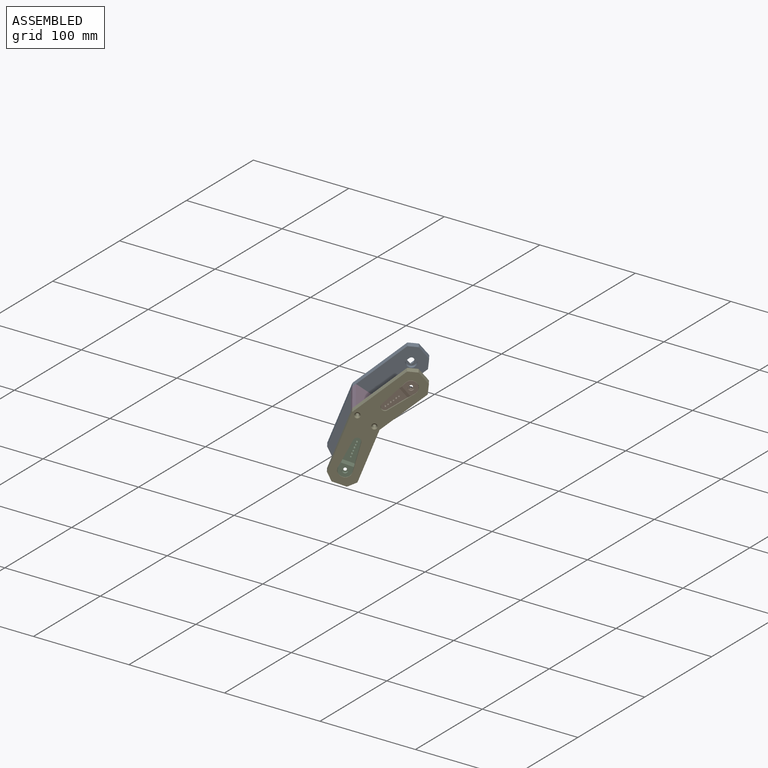
[diagram: assembled view]
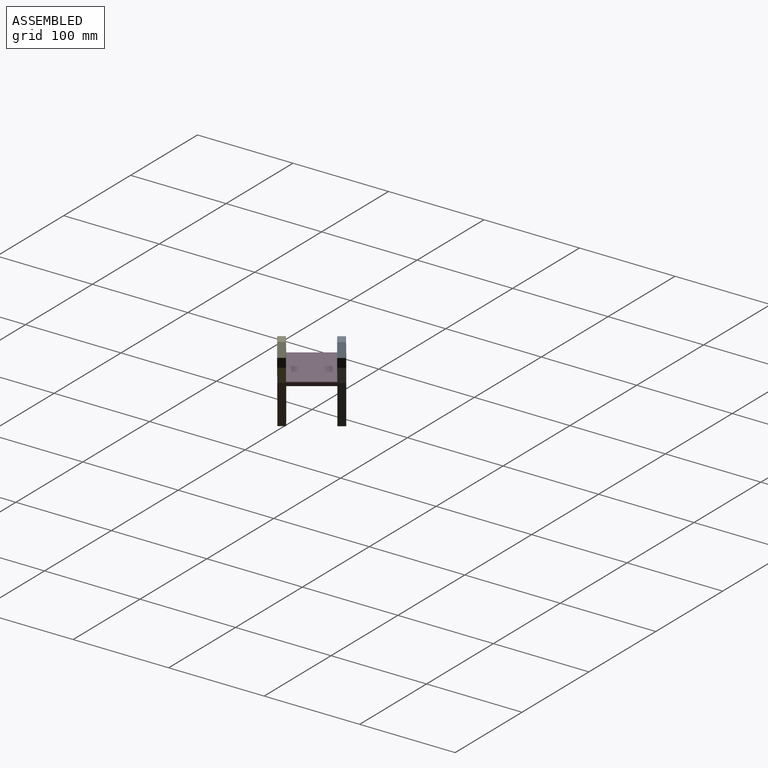
[diagram: assembled view, second angle]
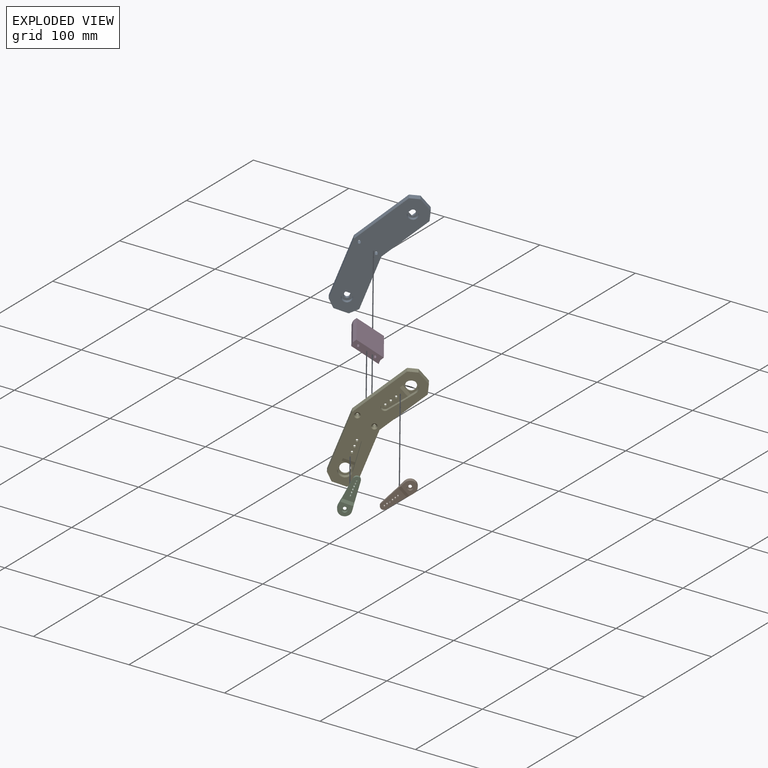
[diagram: exploded view]
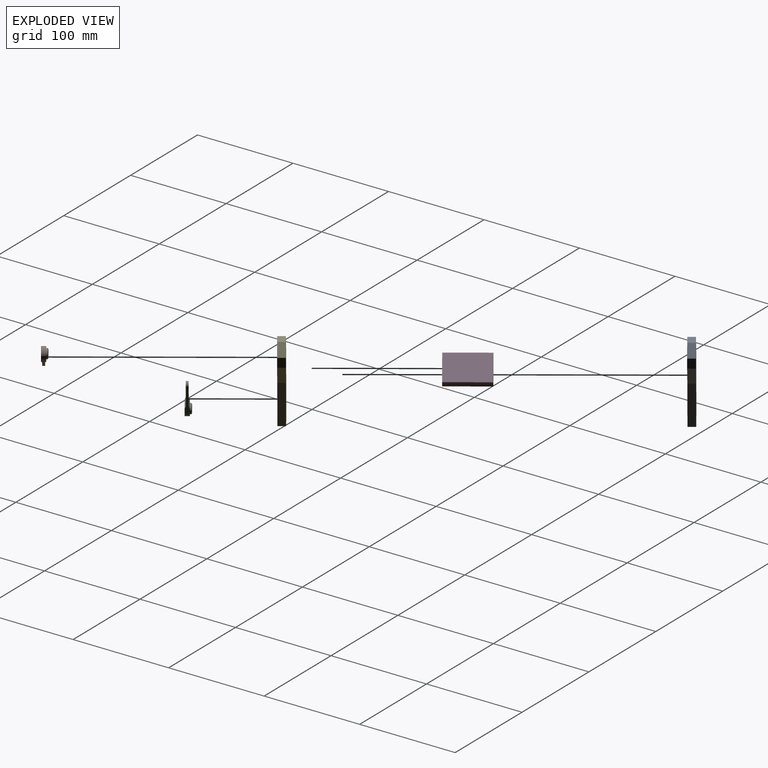
[diagram: exploded view, second angle]
ASSEMBLY  parts=5 mates=7
PART A: 37 faces, bbox 54.6x7.5x122.9 mm
  f0: plane 122.93x54.62mm, normal (0,-1,0), area 2860.3mm2, adj f3,f4,f5,f6,f7,f8,f9,f10
  f1: plane 4.76x2.75mm, normal (-0.5,0,0.87), area 2.9mm2, adj f6,f7,f25,f28,f33,f34
  f2: plane 5.5x1mm, normal (0,0,-1), area 2.9mm2, adj f3,f5,f23,f28,f31,f36
  f3: plane 46.72x3.5mm, normal (-1,0,0), area 119.5mm2, adj f0,f2,f4,f23,f30,f36
  f4: cylinder r=2.75mm len=5.5mm, axis (0,1,0), area 30.2mm2, adj f0,f3,f5,f23
  f5: plane 45.24x3.5mm, normal (1,0,0), area 115.9mm2, adj f0,f2,f4,f23,f29,f31
  f6: plane 40.46x23.36mm, normal (-0.87,0,-0.5), area 119.5mm2, adj f0,f1,f8,f25,f30,f34
  f7: plane 39.18x22.62mm, normal (0.87,0,0.5), area 115.9mm2, adj f0,f1,f8,f25,f29,f33
  f8: cylinder r=2.75mm len=5.13mm, axis (0,1,0), area 30.2mm2, adj f0,f6,f7,f25
  f9: plane 7.5x7mm, normal (-0.71,0,-0.71), area 74.2mm2, adj f0,f10,f20,f21
  f10: plane 14x7.5mm, normal (0,0,-1), area 105mm2, adj f0,f9,f11,f21
  f11: plane 7.5x7mm, normal (0.71,0,-0.71), area 74.2mm2, adj f0,f10,f12,f21
  f12: plane 60.75x7.5mm, normal (1,0,0), area 455.6mm2, adj f0,f11,f13,f21
  f13: plane 52.61x30.38mm, normal (0.87,0,0.5), area 455.6mm2, adj f0,f12,f14,f21
  f14: plane 9.56x7.5mm, normal (0.26,0,0.97), area 74.2mm2, adj f0,f13,f15,f21
  f15: plane 12.12x7.5mm, normal (-0.5,0,0.87), area 105mm2, adj f0,f14,f16,f21
  f16: plane 9.56x7.5mm, normal (-0.97,0,0.26), area 74.2mm2, adj f0,f15,f17,f21
  f17: plane 46.11x26.62mm, normal (-0.87,0,-0.5), area 399.4mm2, adj f0,f16,f20,f21
  f18: cylinder r=1.62mm len=6.25mm, axis (0,1,0), area 63.8mm2, adj f21,f26
  f19: cylinder r=1.62mm len=6.25mm, axis (0,1,0), area 63.8mm2, adj f21,f27
  f20: plane 53.25x7.5mm, normal (-1,0,0), area 399.4mm2, adj f0,f9,f17,f21
  f21: plane 122.93x54.62mm, normal (0,1,0), area 3304.4mm2, adj f9,f10,f11,f12,f13,f14,f15,f16
  f22: cylinder r=5.12mm len=10.25mm, axis (0,1,0), area 128.8mm2, adj f21,f23
  f23: plane 10.25x10.25mm, normal (0,1,0), area 55.5mm2, adj f2,f3,f4,f5,f22
  f24: cylinder r=5.12mm len=10.25mm, axis (0,1,0), area 128.8mm2, adj f21,f25
  f25: plane 10.25x10.25mm, normal (0,1,0), area 55.5mm2, adj f1,f6,f7,f8,f24
  f26: cone r=1.62mm half-angle=45deg, axis (0,-1,0), area 25mm2, adj f0,f18
  f27: cone r=1.62mm half-angle=45deg, axis (0,-1,0), area 25mm2, adj f0,f19
  f28: plane 89.29x27.82mm, normal (0,-1,0), area 425.4mm2, adj f1,f2,f31,f32,f33,f34,f35,f36
  f29: cylinder r=15mm len=7.5mm, axis (0,-1,0), area 19.6mm2, adj f0,f5,f7,f32
  f30: cylinder r=15mm len=7.5mm, axis (0,1,0), area 19.6mm2, adj f0,f3,f6,f35
  f31: cylinder r=0.5mm len=42.49mm, axis (0,0,1), area 33.4mm2, adj f2,f5,f28,f32
  f32: torus R=15.5mm, axis (0,-1,0), area 6.2mm2, adj f28,f29,f31,f33
  f33: cylinder r=0.5mm len=37.05mm, axis (-0.5,0,0.87), area 33.4mm2, adj f1,f7,f28,f32
  f34: cylinder r=0.5mm len=38.33mm, axis (0.5,0,-0.87), area 34.5mm2, adj f1,f6,f28,f35
  f35: torus R=14.5mm, axis (0,-1,0), area 6.1mm2, adj f28,f30,f34,f36
  f36: cylinder r=0.5mm len=43.97mm, axis (0,0,-1), area 34.5mm2, adj f2,f3,f28,f35
PART B: 24 faces, bbox 13x39x6.4 mm
  f0: plane 28.69x4.5mm, normal (0.99,0.1,0), area 84.8mm2, adj f1,f3,f4,f5,f6,f7,f8,f9
  f1: cylinder r=3.5mm len=6.96mm, axis (0,0,-1), area 25.7mm2, adj f0,f2,f6,f8
  f2: plane 28.69x4.5mm, normal (-0.99,0.1,0), area 84.8mm2, adj f1,f3,f4,f5,f6,f7,f8,f9
  f3: cylinder r=6.5mm len=13mm, axis (0,0,-1), area 98mm2, adj f0,f2,f4,f5
  f4: plane 13x12mm, normal (0,0,1), area 109.1mm2, adj f0,f2,f3,f7,f19
  f5: plane 13x12mm, normal (0,0,-1), area 60.4mm2, adj f0,f2,f3,f9,f16
  f6: plane 24x11.3mm, normal (0,0,1), area 192.8mm2, adj f0,f1,f2,f7,f10,f11,f12,f13
  f7: plane 11.93x3mm, normal (0,0.32,0.95), area 36.7mm2, adj f0,f2,f4,f6
  f8: plane 24x11.3mm, normal (0,0,-1), area 192.8mm2, adj f0,f1,f2,f9,f10,f11,f12,f13
  f9: plane 11.93x3mm, normal (0,0.32,-0.95), area 36.7mm2, adj f0,f2,f5,f8
  f10: cylinder r=0.88mm len=2.5mm, axis (0,0,-1), area 13.7mm2, adj f6,f8
  f11: cylinder r=0.88mm len=2.5mm, axis (0,0,-1), area 13.7mm2, adj f6,f8
  f12: cylinder r=0.88mm len=2.5mm, axis (0,0,-1), area 13.7mm2, adj f6,f8
  f13: cylinder r=0.88mm len=2.5mm, axis (0,0,-1), area 13.7mm2, adj f6,f8
  f14: cylinder r=0.88mm len=2.5mm, axis (0,0,-1), area 13.7mm2, adj f6,f8
  f15: cylinder r=0.88mm len=2.5mm, axis (0,0,-1), area 13.7mm2, adj f6,f8
  f16: cylinder r=4.88mm len=9.75mm, axis (0,0,1), area 36.8mm2, adj f5,f18
  f17: plane 8x8mm, normal (0,0,-1), area 11.8mm2, adj f18,f21
  f18: cone r=4mm half-angle=51.3deg, axis (0,0,1), area 31.2mm2, adj f16,f17
  f19: cylinder r=2.88mm len=5.75mm, axis (0,0,1), area 37.9mm2, adj f4,f20
  f20: plane 5.75x5.75mm, normal (0,0,1), area 17.9mm2, adj f19,f23
  f21: cylinder r=3.5mm len=7mm, axis (0,0,-1), area 79.2mm2, adj f17,f22
  f22: plane 7x7mm, normal (0,0,-1), area 30.4mm2, adj f21,f23
  f23: cylinder r=1.6mm len=3.2mm, axis (0,0,1), area 7mm2, adj f20,f22
PART C: same geometry as B
PART D: 10 faces, bbox 29.9x44x14.7 mm
  f0: plane 29.94x14.75mm, normal (0,-1,0), area 207.6mm2, adj f1,f2,f3,f5,f6,f7,f8,f9
  f1: plane 44x3.88mm, normal (-1,0,0), area 170.8mm2, adj f0,f2,f4,f7
  f2: plane 44x28mm, normal (0.26,0,-0.97), area 1275.5mm2, adj f0,f1,f3,f4
  f3: plane 44x3.88mm, normal (1,0,0), area 170.8mm2, adj f0,f2,f4,f6
  f4: plane 29.94x14.75mm, normal (0,1,0), area 207.6mm2, adj f1,f2,f3,f5,f6,f7,f8,f9
  f5: cylinder r=1.25mm len=44mm, axis (0,1,0), area 345.6mm2, adj f0,f4
  f6: plane 44x3.36mm, normal (0.87,0,0.5), area 170.8mm2, adj f0,f3,f4,f8
  f7: plane 44x3.36mm, normal (-0.87,0,-0.5), area 170.8mm2, adj f0,f1,f4,f8
  f8: plane 44x28mm, normal (-0.26,0,0.97), area 1275.5mm2, adj f0,f4,f6,f7
  f9: cylinder r=1.25mm len=44mm, axis (0,1,0), area 345.6mm2, adj f0,f4
PART E: 46 faces, bbox 54.6x7.5x122.9 mm
  f0: plane 122.93x54.62mm, normal (0,1,0), area 2634.5mm2, adj f1,f2,f3,f4,f5,f7,f10,f11
  f1: plane 14x7.5mm, normal (0,0,-1), area 105mm2, adj f0,f9,f10,f11
  f2: plane 60.75x7.5mm, normal (1,0,0), area 455.6mm2, adj f0,f3,f9,f10
  f3: plane 52.61x30.38mm, normal (0.87,0,0.5), area 455.6mm2, adj f0,f2,f9,f13
  f4: plane 12.12x7.5mm, normal (-0.5,0,0.87), area 105mm2, adj f0,f9,f12,f13
  f5: plane 46.11x26.62mm, normal (-0.87,0,-0.5), area 399.4mm2, adj f0,f7,f9,f12
  f6: cylinder r=1.62mm len=6.25mm, axis (0,-1,0), area 63.8mm2, adj f9,f43
  f7: plane 53.25x7.5mm, normal (-1,0,0), area 399.4mm2, adj f0,f5,f9,f11
  f8: cylinder r=1.62mm len=6.25mm, axis (0,-1,0), area 63.8mm2, adj f9,f42
  f9: plane 122.93x54.62mm, normal (0,-1,0), area 3098.2mm2, adj f1,f2,f3,f4,f5,f6,f7,f8
  f10: plane 7.5x7mm, normal (0.71,0,-0.71), area 74.2mm2, adj f0,f1,f2,f9
  f11: plane 7.5x7mm, normal (-0.71,0,-0.71), area 74.2mm2, adj f0,f1,f7,f9
  f12: plane 9.56x7.5mm, normal (-0.97,0,0.26), area 74.2mm2, adj f0,f4,f5,f9
  f13: plane 9.56x7.5mm, normal (0.26,0,0.97), area 74.2mm2, adj f0,f3,f4,f9
  f14: cylinder r=3.75mm len=6.79mm, axis (0,-1,0), area 38.5mm2, adj f0,f15,f17,f19
  f15: plane 23.35x16.93mm, normal (0.81,0,0.59), area 107.3mm2, adj f0,f14,f16,f18,f19,f20
  f16: cylinder r=6.75mm len=12.91mm, axis (0,-1,0), area 101.7mm2, adj f0,f15,f17,f18
  f17: plane 26.34x11.76mm, normal (-0.91,0,-0.41), area 107.3mm2, adj f0,f14,f16,f18,f19,f20
  f18: plane 14.88x14.62mm, normal (0,1,0), area 60.5mm2, adj f15,f16,f17,f20,f21
  f19: plane 24.45x19.11mm, normal (0,1,0), area 205.7mm2, adj f14,f15,f17,f20,f22,f23,f24
  f20: plane 11.99x8.66mm, normal (-0.16,0.95,0.27), area 38.3mm2, adj f15,f17,f18,f19
  f21: cylinder r=5.12mm len=10.25mm, axis (0,1,0), area 48.3mm2, adj f18,f44
  f22: cylinder r=1.25mm len=3mm, axis (0,1,0), area 23.6mm2, adj f19,f41
  f23: cylinder r=1.25mm len=3mm, axis (0,1,0), area 23.6mm2, adj f19,f40
  f24: cylinder r=1.25mm len=3mm, axis (0,1,0), area 23.6mm2, adj f19,f39
  f25: cylinder r=3.75mm len=7.46mm, axis (0,-1,0), area 38.5mm2, adj f0,f26,f28,f30
  f26: plane 28.69x4.5mm, normal (-0.99,0,-0.1), area 107.3mm2, adj f0,f25,f27,f29,f30,f31
  f27: cylinder r=6.75mm len=13.5mm, axis (0,-1,0), area 101.7mm2, adj f0,f26,f28,f29
  f28: plane 28.69x4.5mm, normal (0.99,0,-0.1), area 107.3mm2, adj f0,f25,f27,f29,f30,f31
  f29: plane 13.5x12.25mm, normal (0,1,0), area 60.5mm2, adj f26,f27,f28,f31,f32
  f30: plane 24.25x11.8mm, normal (0,1,0), area 205.7mm2, adj f25,f26,f28,f31,f33,f34,f35
  f31: plane 12.43x3mm, normal (0,0.95,-0.32), area 38.3mm2, adj f26,f28,f29,f30
  f32: cylinder r=5.12mm len=10.25mm, axis (0,1,0), area 48.3mm2, adj f29,f45
  f33: cylinder r=1.25mm len=3mm, axis (0,1,0), area 23.6mm2, adj f30,f36
  f34: cylinder r=1.25mm len=3mm, axis (0,1,0), area 23.6mm2, adj f30,f37
  f35: cylinder r=1.25mm len=3mm, axis (0,1,0), area 23.6mm2, adj f30,f38
  f36: cone r=2.25mm half-angle=45deg, axis (0,-1,0), area 15.6mm2, adj f9,f33
  f37: cone r=2.25mm half-angle=45deg, axis (0,-1,0), area 15.6mm2, adj f9,f34
  f38: cone r=2.25mm half-angle=45deg, axis (0,-1,0), area 15.6mm2, adj f9,f35
  f39: cone r=2.25mm half-angle=45deg, axis (0,-1,0), area 15.6mm2, adj f9,f24
  f40: cone r=2.25mm half-angle=45deg, axis (0,-1,0), area 15.6mm2, adj f9,f23
  f41: cone r=2.25mm half-angle=45deg, axis (0,-1,0), area 15.6mm2, adj f9,f22
  f42: cone r=2.88mm half-angle=45deg, axis (0,1,0), area 25mm2, adj f0,f8
  f43: cone r=2.88mm half-angle=45deg, axis (0,1,0), area 25mm2, adj f0,f6
  f44: cone r=6.62mm half-angle=45deg, axis (0,-1,0), area 78.3mm2, adj f9,f21
  f45: cone r=6.62mm half-angle=45deg, axis (0,-1,0), area 78.3mm2, adj f9,f32
PLACE A rot(axis=(-0.18,-0.06,-0.98),145.8deg) t=(31.19,21.7,-20.65)mm
PLACE B rot(axis=(0.48,-0.52,0.7),168.6deg) t=(91.96,33.44,57.61)mm
PLACE C rot(axis=(0.88,0.46,0.12),90.8deg) t=(45.44,1.16,-20.65)mm
PLACE D rot(axis=(-0.18,-0.06,-0.98),145.8deg) t=(31.19,21.7,-20.65)mm
PLACE E rot(axis=(-0.18,-0.06,-0.98),145.8deg) t=(31.19,21.7,-20.65)mm
MATE revolute A.f19 <-> D.f9  axis (0.57,-0.82,0) through (27.31,45.78,31.34)mm
MATE revolute E.f21 <-> B.f3  axis (0.57,-0.82,0) through (91.96,33.44,57.61)mm
MATE revolute A.f18 <-> D.f5  axis (0.57,-0.82,0) through (39.29,54.1,20.79)mm
MATE revolute D.f9 <-> E.f6  axis (0.57,-0.82,0) through (52.39,9.63,31.34)mm
MATE revolute E.f24 <-> B.f15  axis (0.57,-0.82,0) through (74.37,20.01,39.63)mm
MATE revolute E.f8 <-> D.f5  axis (-0.57,0.82,0) through (64.37,17.94,20.79)mm
MATE fastened E.f45 <-> C.f3  axis (0.57,-0.82,0) through (45.44,1.16,-20.65)mm
